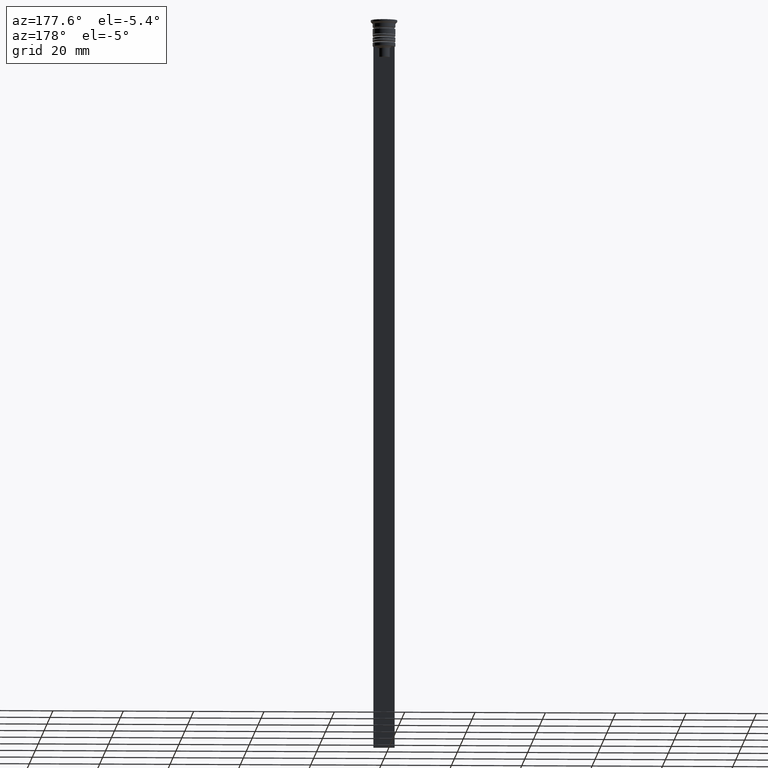
[diagram: clean part render]
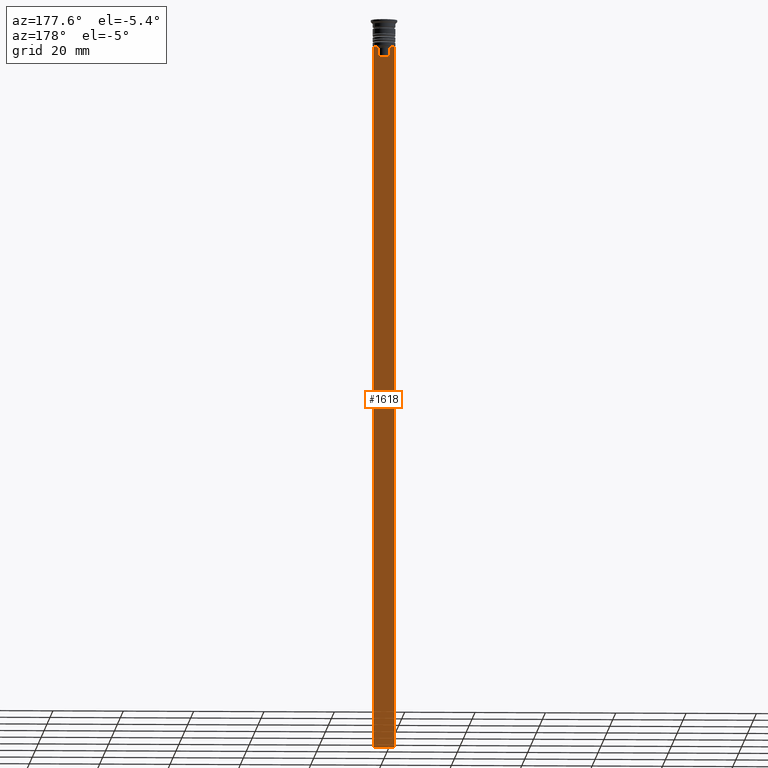
[diagram: same view with one face highlighted and labeled with its STEP entity id]
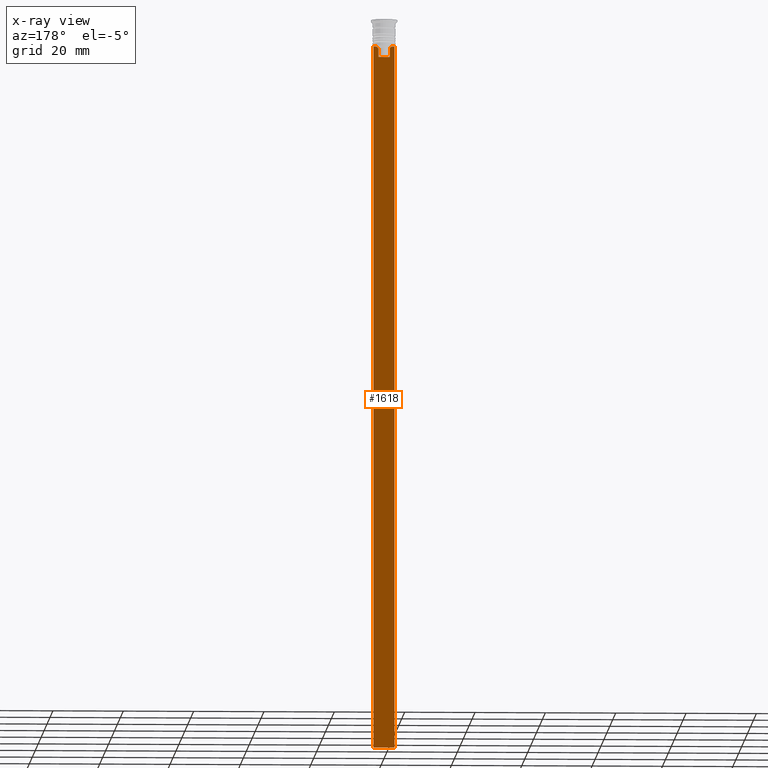
[diagram: x-ray of the same camera — body ghosted, the highlighted face saturated]
A machine part, auxiliary view. The second image highlights one B-rep face of the part: STEP entity #1618.
The next image is the same camera in x-ray: the body ghosted, the highlighted face saturated — about 0% of this face is hidden behind the body in this view.
In plain terms, the highlighted planar face has unit normal (0, -1, -0).
Its self-contained STEP definition (entity closure, byte-faithful):
#15 = EDGE_CURVE ( 'NONE', #1624, #1044, #1380, .T. ) ;
#54 = EDGE_CURVE ( 'NONE', #102, #771, #140, .T. ) ;
#57 = ORIENTED_EDGE ( 'NONE', *, *, #1977, .T. ) ;
#66 = VERTEX_POINT ( 'NONE', #1812 ) ;
#99 = LINE ( 'NONE', #602, #1941 ) ;
#102 = VERTEX_POINT ( 'NONE', #440 ) ;
#109 = EDGE_CURVE ( 'NONE', #1966, #1362, #99, .T. ) ;
#111 = LINE ( 'NONE', #1461, #723 ) ;
#140 = LINE ( 'NONE', #266, #251 ) ;
#146 = CARTESIAN_POINT ( 'NONE',  ( 1.782523989086206795, 0.3500000000000000333, -7.833797837268088315 ) ) ;
#166 = VECTOR ( 'NONE', #1189, 1000.000000000000000 ) ;
#238 = CARTESIAN_POINT ( 'NONE',  ( -1.612451549659713601, 0.3500000000000000333, -10.49999999999999822 ) ) ;
#251 = VECTOR ( 'NONE', #1970, 1000.000000000000000 ) ;
#266 = CARTESIAN_POINT ( 'NONE',  ( 2.999999999999995559, 0.3500000000000000333, -7.500000000000000000 ) ) ;
#274 = DIRECTION ( 'NONE',  ( 1.000000000000000000, 0.000000000000000000, 0.000000000000000000 ) ) ;
#308 = CARTESIAN_POINT ( 'NONE',  ( -1.612451549659713601, 0.3500000000000000333, 0.000000000000000000 ) ) ;
#317 = FACE_OUTER_BOUND ( 'NONE', #2006, .T. ) ;
#323 = LINE ( 'NONE', #2174, #166 ) ;
#347 = DIRECTION ( 'NONE',  ( 0.000000000000000000, -1.000000000000000000, -0.000000000000000000 ) ) ;
#349 = ORIENTED_EDGE ( 'NONE', *, *, #976, .F. ) ;
#353 = EDGE_CURVE ( 'NONE', #361, #1009, #2019, .T. ) ;
#361 = VERTEX_POINT ( 'NONE', #1519 ) ;
#362 = VECTOR ( 'NONE', #1018, 1000.000000000000000 ) ;
#411 = ORIENTED_EDGE ( 'NONE', *, *, #2139, .T. ) ;
#440 = CARTESIAN_POINT ( 'NONE',  ( -3.000000000000004441, 0.3499999999999999223, -7.500000000000000000 ) ) ;
#477 = DIRECTION ( 'NONE',  ( -0.000000000000000000, -0.000000000000000000, 1.000000000000000000 ) ) ;
#481 = CARTESIAN_POINT ( 'NONE',  ( -3.000000000000004441, 0.3500000000000000333, -207.5000000000000284 ) ) ;
#491 = CARTESIAN_POINT ( 'NONE',  ( 2.999999999999995559, 0.3500000000000000333, -1.459304675784417915 ) ) ;
#506 = ORIENTED_EDGE ( 'NONE', *, *, #353, .T. ) ;
#600 = LINE ( 'NONE', #1116, #1359 ) ;
#602 = CARTESIAN_POINT ( 'NONE',  ( 2.999999999999995559, 0.3500000000000000333, -1.459304675784417915 ) ) ;
#723 = VECTOR ( 'NONE', #1154, 1000.000000000000000 ) ;
#771 = VERTEX_POINT ( 'NONE', #1723 ) ;
#774 = CARTESIAN_POINT ( 'NONE',  ( -1.782527878033863589, 0.3500000000000000333, -7.833794036819862860 ) ) ;
#827 = AXIS2_PLACEMENT_3D ( 'NONE', #491, #347, #2005 ) ;
#899 = CARTESIAN_POINT ( 'NONE',  ( 1.612451549659713601, 0.3500000000000000333, -8.000000000000000000 ) ) ;
#974 = ORIENTED_EDGE ( 'NONE', *, *, #1992, .T. ) ;
#976 = EDGE_CURVE ( 'NONE', #102, #1695, #1041, .T. ) ;
#979 = CARTESIAN_POINT ( 'NONE',  ( 1.612451549659713601, 0.3500000000000000333, 0.000000000000000000 ) ) ;
#980 = B_SPLINE_CURVE_WITH_KNOTS ( 'NONE', 3,
 ( #1485, #1968, #774, #1785 ),
 .UNSPECIFIED., .F., .F.,
 ( 4, 4 ),
 ( 0.003684653461239336628, 0.004398058763641255961 ),
 .UNSPECIFIED. ) ;
#1009 = VERTEX_POINT ( 'NONE', #238 ) ;
#1010 = CARTESIAN_POINT ( 'NONE',  ( 2.121320343559647270, 0.3500000000000000333, -7.500000000000000000 ) ) ;
#1018 = DIRECTION ( 'NONE',  ( 0.000000000000000000, 0.000000000000000000, -1.000000000000000000 ) ) ;
#1041 = LINE ( 'NONE', #2033, #1069 ) ;
#1044 = VERTEX_POINT ( 'NONE', #899 ) ;
#1069 = VECTOR ( 'NONE', #1874, 1000.000000000000000 ) ;
#1116 = CARTESIAN_POINT ( 'NONE',  ( 0.000000000000000000, 0.3500000000000000333, -10.49999999999999822 ) ) ;
#1154 = DIRECTION ( 'NONE',  ( 1.000000000000000000, 0.000000000000000000, 0.000000000000000000 ) ) ;
#1189 = DIRECTION ( 'NONE',  ( -1.000000000000000000, 0.000000000000000000, 0.000000000000000000 ) ) ;
#1257 = EDGE_CURVE ( 'NONE', #1044, #66, #2070, .T. ) ;
#1288 = DIRECTION ( 'NONE',  ( 0.000000000000000000, 0.000000000000000000, -1.000000000000000000 ) ) ;
#1297 = ORIENTED_EDGE ( 'NONE', *, *, #109, .T. ) ;
#1313 = CARTESIAN_POINT ( 'NONE',  ( 1.612451549659713601, 0.3500000000000000333, -10.49999999999999822 ) ) ;
#1357 = PLANE ( 'NONE',  #827 ) ;
#1359 = VECTOR ( 'NONE', #274, 1000.000000000000000 ) ;
#1362 = VERTEX_POINT ( 'NONE', #1740 ) ;
#1380 = LINE ( 'NONE', #979, #2082 ) ;
#1448 = CARTESIAN_POINT ( 'NONE',  ( 2.999999999999995559, 0.3500000000000000333, -7.500000000000000000 ) ) ;
#1461 = CARTESIAN_POINT ( 'NONE',  ( 2.999999999999995559, 0.3500000000000000333, -7.500000000000000000 ) ) ;
#1485 = CARTESIAN_POINT ( 'NONE',  ( -2.121320343559647270, 0.3500000000000000333, -7.500000000000000000 ) ) ;
#1506 = CARTESIAN_POINT ( 'NONE',  ( 1.952040775369266346, 0.3500000000000000333, -7.667021484535463394 ) ) ;
#1519 = CARTESIAN_POINT ( 'NONE',  ( -1.612451549659713601, 0.3500000000000000333, -8.000000000000000000 ) ) ;
#1546 = ORIENTED_EDGE ( 'NONE', *, *, #1954, .T. ) ;
#1618 = ADVANCED_FACE ( 'NONE', ( #317 ), #1357, .F. ) ;
#1624 = VERTEX_POINT ( 'NONE', #1313 ) ;
#1688 = CARTESIAN_POINT ( 'NONE',  ( 1.612451549659713601, 0.3500000000000000333, -8.000000000000000000 ) ) ;
#1695 = VERTEX_POINT ( 'NONE', #481 ) ;
#1723 = CARTESIAN_POINT ( 'NONE',  ( -2.121320343559647270, 0.3500000000000000333, -7.500000000000000000 ) ) ;
#1740 = CARTESIAN_POINT ( 'NONE',  ( 2.999999999999995559, 0.3500000000000000333, -207.5000000000000284 ) ) ;
#1785 = CARTESIAN_POINT ( 'NONE',  ( -1.612451549659713601, 0.3500000000000000333, -8.000000000000000000 ) ) ;
#1812 = CARTESIAN_POINT ( 'NONE',  ( 2.121320343559647270, 0.3500000000000000333, -7.500000000000000000 ) ) ;
#1874 = DIRECTION ( 'NONE',  ( 0.000000000000000000, 0.000000000000000000, -1.000000000000000000 ) ) ;
#1941 = VECTOR ( 'NONE', #1288, 1000.000000000000000 ) ;
#1954 = EDGE_CURVE ( 'NONE', #66, #1966, #111, .T. ) ;
#1966 = VERTEX_POINT ( 'NONE', #1448 ) ;
#1968 = CARTESIAN_POINT ( 'NONE',  ( -1.952043732028445167, 0.3500000000000000333, -7.667018567316270961 ) ) ;
#1970 = DIRECTION ( 'NONE',  ( 1.000000000000000000, 0.000000000000000000, 0.000000000000000000 ) ) ;
#1977 = EDGE_CURVE ( 'NONE', #771, #361, #980, .T. ) ;
#1992 = EDGE_CURVE ( 'NONE', #1009, #1624, #600, .T. ) ;
#2000 = ORIENTED_EDGE ( 'NONE', *, *, #54, .T. ) ;
#2005 = DIRECTION ( 'NONE',  ( 0.000000000000000000, 0.000000000000000000, -1.000000000000000000 ) ) ;
#2006 = EDGE_LOOP ( 'NONE', ( #2000, #57, #506, #974, #2066, #2036, #1546, #1297, #411, #349 ) ) ;
#2019 = LINE ( 'NONE', #308, #362 ) ;
#2033 = CARTESIAN_POINT ( 'NONE',  ( -3.000000000000004441, 0.3500000000000000333, -1.459304675784417915 ) ) ;
#2036 = ORIENTED_EDGE ( 'NONE', *, *, #1257, .T. ) ;
#2066 = ORIENTED_EDGE ( 'NONE', *, *, #15, .T. ) ;
#2070 = B_SPLINE_CURVE_WITH_KNOTS ( 'NONE', 3,
 ( #1688, #146, #1506, #1010 ),
 .UNSPECIFIED., .F., .F.,
 ( 4, 4 ),
 ( 0.008600796474521226961, 0.009317962624906524910 ),
 .UNSPECIFIED. ) ;
#2082 = VECTOR ( 'NONE', #477, 1000.000000000000000 ) ;
#2139 = EDGE_CURVE ( 'NONE', #1362, #1695, #323, .T. ) ;
#2174 = CARTESIAN_POINT ( 'NONE',  ( 2.999999999999995559, 0.3500000000000000333, -207.5000000000000284 ) ) ;